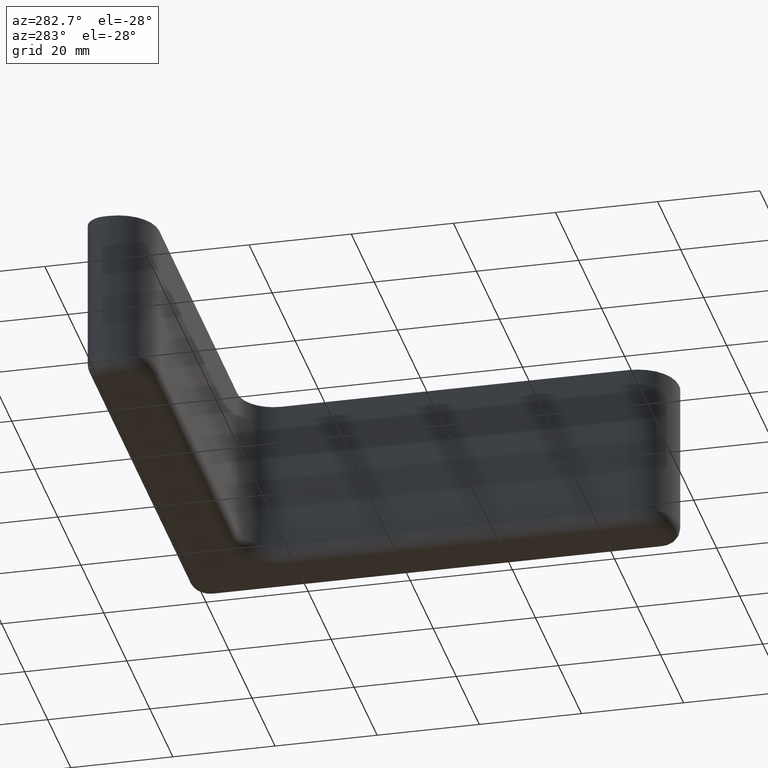
[diagram: clean part render]
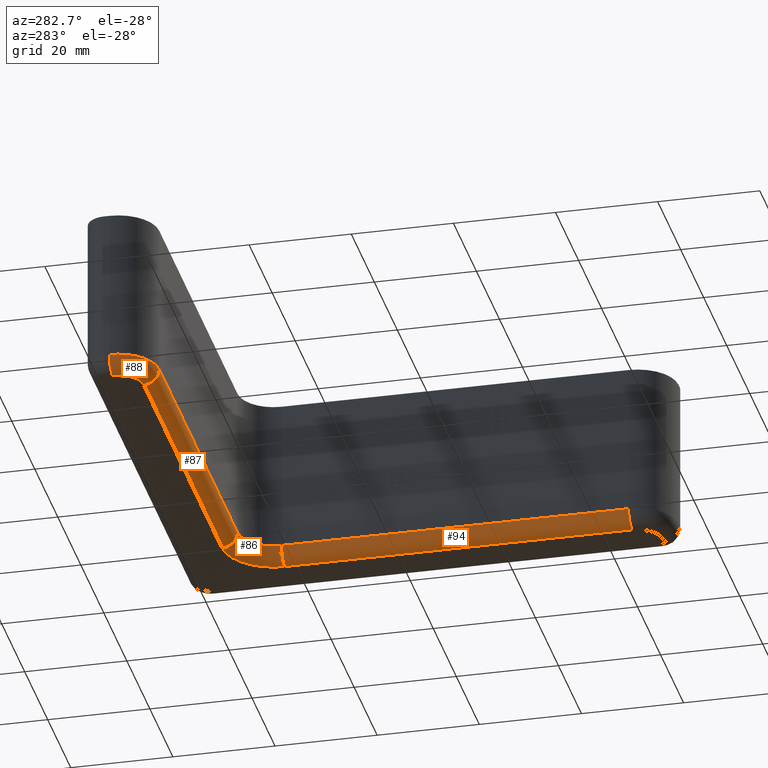
[diagram: same view with one multi-face feature highlighted, each face labeled with its STEP entity id]
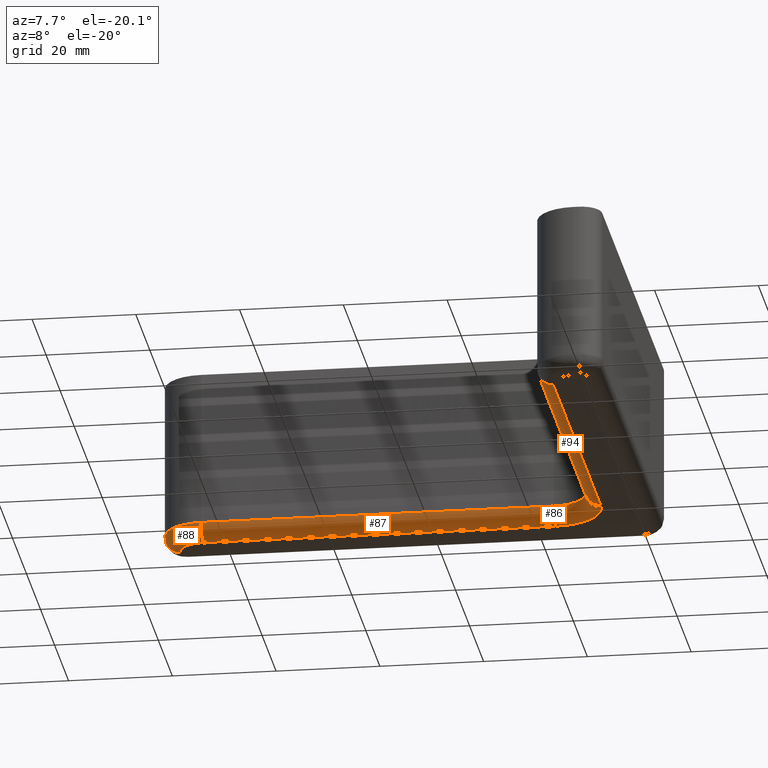
[diagram: same view with one multi-face feature highlighted, each face labeled with its STEP entity id]
A machine part, auxiliary view. The highlighted faces form ONE feature: a constant-radius fillet chain: 4 tangent blend faces with common blend radius 3 mm. The faces share edges in the B-rep.
A second angle (auxiliary view) of the same feature is appended — it is thin or edge-on in the first view.
Their STEP definitions:
[1] entity #94 (Cylinder):
#94 = ADVANCED_FACE( '', ( #154 ), #155, .T. );
#154 = FACE_OUTER_BOUND( '', #278, .T. );
#155 = CYLINDRICAL_SURFACE( '', #279, 3.00000000000000 );
#278 = EDGE_LOOP( '', ( #478, #479, #480, #481 ) );
#279 = AXIS2_PLACEMENT_3D( '', #482, #483, #484 );
#478 = ORIENTED_EDGE( '', *, *, #685, .T. );
#479 = ORIENTED_EDGE( '', *, *, #677, .T. );
#480 = ORIENTED_EDGE( '', *, *, #697, .F. );
#481 = ORIENTED_EDGE( '', *, *, #652, .T. );
#482 = CARTESIAN_POINT( '', ( -7.00000000000002, -26.0000000000000, -30.0000000000000 ) );
#483 = DIRECTION( '', ( 0.000000000000000, -1.00000000000000, -8.65927457071936E-017 ) );
#484 = DIRECTION( '', ( -0.707106781186547, 6.12303176911189E-017, -0.707106781186547 ) );
#652 = EDGE_CURVE( '', #777, #778, #779, .T. );
#677 = EDGE_CURVE( '', #824, #822, #825, .T. );
#685 = EDGE_CURVE( '', #778, #824, #838, .T. );
#697 = EDGE_CURVE( '', #777, #822, #853, .T. );
#777 = VERTEX_POINT( '', #951 );
#778 = VERTEX_POINT( '', #952 );
#779 = LINE( '', #953, #954 );
#822 = VERTEX_POINT( '', #1010 );
#824 = VERTEX_POINT( '', #1012 );
#825 = LINE( '', #1013, #1014 );
#838 = CIRCLE( '', #1029, 3.00000000000000 );
#853 = CIRCLE( '', #1048, 3.00000000000000 );
#951 = CARTESIAN_POINT( '', ( -10.0000000000000, -85.0000000000000, -30.0000000000000 ) );
#952 = CARTESIAN_POINT( '', ( -10.0000000000000, -17.0000000000000, -30.0000000000000 ) );
#953 = CARTESIAN_POINT( '', ( -10.0000000000000, -26.0000000000000, -30.0000000000000 ) );
#954 = VECTOR( '', #1146, 1000.00000000000 );
#1010 = CARTESIAN_POINT( '', ( -7.00000000000001, -85.0000000000000, -33.0000000000000 ) );
#1012 = CARTESIAN_POINT( '', ( -7.00000000000002, -17.0000000000000, -33.0000000000000 ) );
#1013 = CARTESIAN_POINT( '', ( -7.00000000000002, -26.0000000000000, -33.0000000000000 ) );
#1014 = VECTOR( '', #1193, 1000.00000000000 );
#1029 = AXIS2_PLACEMENT_3D( '', #1211, #1212, #1213 );
#1048 = AXIS2_PLACEMENT_3D( '', #1239, #1240, #1241 );
#1146 = DIRECTION( '', ( 0.000000000000000, 1.00000000000000, 8.65927457071936E-017 ) );
#1193 = DIRECTION( '', ( 0.000000000000000, -1.00000000000000, -8.65927457071936E-017 ) );
#1211 = CARTESIAN_POINT( '', ( -7.00000000000002, -17.0000000000000, -30.0000000000000 ) );
#1212 = DIRECTION( '', ( 0.000000000000000, -1.00000000000000, -8.65927457071935E-017 ) );
#1213 = DIRECTION( '', ( -1.00000000000000, -3.10589904968477E-033, 3.58678896750442E-017 ) );
#1239 = CARTESIAN_POINT( '', ( -7.00000000000001, -85.0000000000000, -30.0000000000000 ) );
#1240 = DIRECTION( '', ( 0.000000000000000, -1.00000000000000, -8.65927457071935E-017 ) );
#1241 = DIRECTION( '', ( -1.00000000000000, -3.10589904968477E-033, 3.58678896750442E-017 ) );
[2] entity #86 (Torus):
#86 = ADVANCED_FACE( '', ( #138 ), #139, .T. );
#138 = FACE_OUTER_BOUND( '', #232, .T. );
#139 = TOROIDAL_SURFACE( '', #233, 10.0000000000000, 3.00000000000000 );
#232 = EDGE_LOOP( '', ( #428, #429, #430, #431 ) );
#233 = AXIS2_PLACEMENT_3D( '', #432, #433, #434 );
#428 = ORIENTED_EDGE( '', *, *, #684, .T. );
#429 = ORIENTED_EDGE( '', *, *, #678, .T. );
#430 = ORIENTED_EDGE( '', *, *, #685, .F. );
#431 = ORIENTED_EDGE( '', *, *, #686, .T. );
#432 = CARTESIAN_POINT( '', ( -17.0000000000000, -17.0000000000000, -30.0000000000000 ) );
#433 = DIRECTION( '', ( -3.58678896750442E-017, 8.65927457071936E-017, -1.00000000000000 ) );
#434 = DIRECTION( '', ( 1.00000000000000, -1.06733799631484E-048, -3.58678896750442E-017 ) );
#678 = EDGE_CURVE( '', #826, #824, #827, .T. );
#684 = EDGE_CURVE( '', #836, #826, #837, .T. );
#685 = EDGE_CURVE( '', #778, #824, #838, .T. );
#686 = EDGE_CURVE( '', #778, #836, #839, .T. );
#778 = VERTEX_POINT( '', #952 );
#824 = VERTEX_POINT( '', #1012 );
#826 = VERTEX_POINT( '', #1015 );
#827 = CIRCLE( '', #1016, 10.0000000000000 );
#836 = VERTEX_POINT( '', #1027 );
#837 = CIRCLE( '', #1028, 3.00000000000000 );
#838 = CIRCLE( '', #1029, 3.00000000000000 );
#839 = CIRCLE( '', #1030, 7.00000000000000 );
#952 = CARTESIAN_POINT( '', ( -10.0000000000000, -17.0000000000000, -30.0000000000000 ) );
#1012 = CARTESIAN_POINT( '', ( -7.00000000000002, -17.0000000000000, -33.0000000000000 ) );
#1015 = CARTESIAN_POINT( '', ( -17.0000000000000, -6.99999999999999, -33.0000000000000 ) );
#1016 = AXIS2_PLACEMENT_3D( '', #1194, #1195, #1196 );
#1027 = CARTESIAN_POINT( '', ( -17.0000000000000, -9.99999999999999, -30.0000000000000 ) );
#1028 = AXIS2_PLACEMENT_3D( '', #1208, #1209, #1210 );
#1029 = AXIS2_PLACEMENT_3D( '', #1211, #1212, #1213 );
#1030 = AXIS2_PLACEMENT_3D( '', #1214, #1215, #1216 );
#1194 = CARTESIAN_POINT( '', ( -17.0000000000000, -17.0000000000000, -33.0000000000000 ) );
#1195 = DIRECTION( '', ( -3.58678896750442E-017, 8.65927457071936E-017, -1.00000000000000 ) );
#1196 = DIRECTION( '', ( 0.707106781186547, 0.707106781186548, 3.58678896750442E-017 ) );
#1208 = CARTESIAN_POINT( '', ( -17.0000000000000, -6.99999999999999, -30.0000000000000 ) );
#1209 = DIRECTION( '', ( 1.00000000000000, 0.000000000000000, -3.58678896750442E-017 ) );
#1210 = DIRECTION( '', ( -3.10589904968477E-033, -1.00000000000000, -8.65927457071935E-017 ) );
#1211 = CARTESIAN_POINT( '', ( -7.00000000000002, -17.0000000000000, -30.0000000000000 ) );
#1212 = DIRECTION( '', ( 0.000000000000000, -1.00000000000000, -8.65927457071935E-017 ) );
#1213 = DIRECTION( '', ( -1.00000000000000, -3.10589904968477E-033, 3.58678896750442E-017 ) );
#1214 = CARTESIAN_POINT( '', ( -17.0000000000000, -17.0000000000000, -30.0000000000000 ) );
#1215 = DIRECTION( '', ( 3.58678896750442E-017, -8.65927457071935E-017, 1.00000000000000 ) );
#1216 = DIRECTION( '', ( 0.707106781186547, 0.707106781186548, 3.58678896750442E-017 ) );
[3] entity #87 (Cylinder):
#87 = ADVANCED_FACE( '', ( #140 ), #141, .T. );
#140 = FACE_OUTER_BOUND( '', #234, .T. );
#141 = CYLINDRICAL_SURFACE( '', #235, 3.00000000000000 );
#234 = EDGE_LOOP( '', ( #435, #436, #437, #438 ) );
#235 = AXIS2_PLACEMENT_3D( '', #439, #440, #441 );
#435 = ORIENTED_EDGE( '', *, *, #687, .T. );
#436 = ORIENTED_EDGE( '', *, *, #679, .T. );
#437 = ORIENTED_EDGE( '', *, *, #684, .F. );
#438 = ORIENTED_EDGE( '', *, *, #688, .T. );
#439 = CARTESIAN_POINT( '', ( -67.5000000000000, -6.99999999999999, -30.0000000000000 ) );
#440 = DIRECTION( '', ( -1.00000000000000, 5.47820073070147E-033, 8.26845232435749E-017 ) );
#441 = DIRECTION( '', ( -5.84667870847085E-017, -0.707106781186547, -0.707106781186548 ) );
#679 = EDGE_CURVE( '', #828, #826, #829, .T. );
#684 = EDGE_CURVE( '', #836, #826, #837, .T. );
#687 = EDGE_CURVE( '', #840, #828, #841, .T. );
#688 = EDGE_CURVE( '', #836, #840, #842, .T. );
#826 = VERTEX_POINT( '', #1015 );
#828 = VERTEX_POINT( '', #1017 );
#829 = LINE( '', #1018, #1019 );
#836 = VERTEX_POINT( '', #1027 );
#837 = CIRCLE( '', #1028, 3.00000000000000 );
#840 = VERTEX_POINT( '', #1031 );
#841 = CIRCLE( '', #1032, 3.00000000000000 );
#842 = LINE( '', #1033, #1034 );
#1015 = CARTESIAN_POINT( '', ( -17.0000000000000, -6.99999999999999, -33.0000000000000 ) );
#1017 = CARTESIAN_POINT( '', ( -85.0000000000000, -6.99999999999999, -33.0000000000000 ) );
#1018 = CARTESIAN_POINT( '', ( -67.5000000000000, -6.99999999999999, -33.0000000000000 ) );
#1019 = VECTOR( '', #1197, 1000.00000000000 );
#1027 = CARTESIAN_POINT( '', ( -17.0000000000000, -9.99999999999999, -30.0000000000000 ) );
#1028 = AXIS2_PLACEMENT_3D( '', #1208, #1209, #1210 );
#1031 = CARTESIAN_POINT( '', ( -85.0000000000000, -9.99999999999999, -30.0000000000000 ) );
#1032 = AXIS2_PLACEMENT_3D( '', #1217, #1218, #1219 );
#1033 = CARTESIAN_POINT( '', ( -67.5000000000000, -9.99999999999999, -30.0000000000000 ) );
#1034 = VECTOR( '', #1220, 1000.00000000000 );
#1197 = DIRECTION( '', ( 1.00000000000000, 2.22044604925031E-016, -3.58678896750442E-017 ) );
#1208 = CARTESIAN_POINT( '', ( -17.0000000000000, -6.99999999999999, -30.0000000000000 ) );
#1209 = DIRECTION( '', ( 1.00000000000000, 0.000000000000000, -3.58678896750442E-017 ) );
#1210 = DIRECTION( '', ( -3.10589904968477E-033, -1.00000000000000, -8.65927457071935E-017 ) );
#1217 = CARTESIAN_POINT( '', ( -85.0000000000000, -6.99999999999999, -30.0000000000000 ) );
#1218 = DIRECTION( '', ( 1.00000000000000, 0.000000000000000, -3.58678896750442E-017 ) );
#1219 = DIRECTION( '', ( -3.10589904968477E-033, -1.00000000000000, -8.65927457071935E-017 ) );
#1220 = DIRECTION( '', ( -1.00000000000000, -2.22044604925031E-016, 3.58678896750442E-017 ) );
[4] entity #88 (Torus):
#88 = ADVANCED_FACE( '', ( #142 ), #143, .T. );
#142 = FACE_OUTER_BOUND( '', #236, .T. );
#143 = TOROIDAL_SURFACE( '', #237, 5.00000000000000, 3.00000000000000 );
#236 = EDGE_LOOP( '', ( #442, #443, #444, #445 ) );
#237 = AXIS2_PLACEMENT_3D( '', #446, #447, #448 );
#442 = ORIENTED_EDGE( '', *, *, #624, .T. );
#443 = ORIENTED_EDGE( '', *, *, #680, .T. );
#444 = ORIENTED_EDGE( '', *, *, #687, .F. );
#445 = ORIENTED_EDGE( '', *, *, #689, .T. );
#446 = CARTESIAN_POINT( '', ( -85.0000000000000, -1.99999999999999, -30.0000000000000 ) );
#447 = DIRECTION( '', ( 3.58678896750442E-017, -8.65927457071936E-017, 1.00000000000000 ) );
#448 = DIRECTION( '', ( -1.00000000000000, 1.06733799631484E-048, 3.58678896750442E-017 ) );
#624 = EDGE_CURVE( '', #727, #725, #728, .T. );
#680 = EDGE_CURVE( '', #725, #828, #830, .T. );
#687 = EDGE_CURVE( '', #840, #828, #841, .T. );
#689 = EDGE_CURVE( '', #840, #727, #843, .T. );
#725 = VERTEX_POINT( '', #883 );
#727 = VERTEX_POINT( '', #886 );
#728 = CIRCLE( '', #887, 3.00000000000001 );
#828 = VERTEX_POINT( '', #1017 );
#830 = CIRCLE( '', #1020, 5.00000000000000 );
#840 = VERTEX_POINT( '', #1031 );
#841 = CIRCLE( '', #1032, 3.00000000000000 );
#843 = CIRCLE( '', #1035, 8.00000000000000 );
#883 = CARTESIAN_POINT( '', ( -90.0000000000000, -1.99999999999999, -33.0000000000000 ) );
#886 = CARTESIAN_POINT( '', ( -93.0000000000000, -1.99999999999999, -30.0000000000000 ) );
#887 = AXIS2_PLACEMENT_3D( '', #1092, #1093, #1094 );
#1017 = CARTESIAN_POINT( '', ( -85.0000000000000, -6.99999999999999, -33.0000000000000 ) );
#1020 = AXIS2_PLACEMENT_3D( '', #1198, #1199, #1200 );
#1031 = CARTESIAN_POINT( '', ( -85.0000000000000, -9.99999999999999, -30.0000000000000 ) );
#1032 = AXIS2_PLACEMENT_3D( '', #1217, #1218, #1219 );
#1035 = AXIS2_PLACEMENT_3D( '', #1221, #1222, #1223 );
#1092 = CARTESIAN_POINT( '', ( -90.0000000000000, -1.99999999999999, -30.0000000000000 ) );
#1093 = DIRECTION( '', ( 6.08202458474309E-049, -1.00000000000000, -8.65927457071935E-017 ) );
#1094 = DIRECTION( '', ( -1.00000000000000, -3.10589904968477E-033, 3.58678896750442E-017 ) );
#1198 = CARTESIAN_POINT( '', ( -85.0000000000000, -1.99999999999999, -33.0000000000000 ) );
#1199 = DIRECTION( '', ( 3.58678896750442E-017, -8.65927457071936E-017, 1.00000000000000 ) );
#1200 = DIRECTION( '', ( -0.707106781186548, -0.707106781186547, -3.58678896750441E-017 ) );
#1217 = CARTESIAN_POINT( '', ( -85.0000000000000, -6.99999999999999, -30.0000000000000 ) );
#1218 = DIRECTION( '', ( 1.00000000000000, 0.000000000000000, -3.58678896750442E-017 ) );
#1219 = DIRECTION( '', ( -3.10589904968477E-033, -1.00000000000000, -8.65927457071935E-017 ) );
#1221 = CARTESIAN_POINT( '', ( -85.0000000000000, -1.99999999999999, -30.0000000000000 ) );
#1222 = DIRECTION( '', ( -3.58678896750442E-017, 8.65927457071936E-017, -1.00000000000000 ) );
#1223 = DIRECTION( '', ( -0.707106781186548, -0.707106781186547, -3.58678896750441E-017 ) );